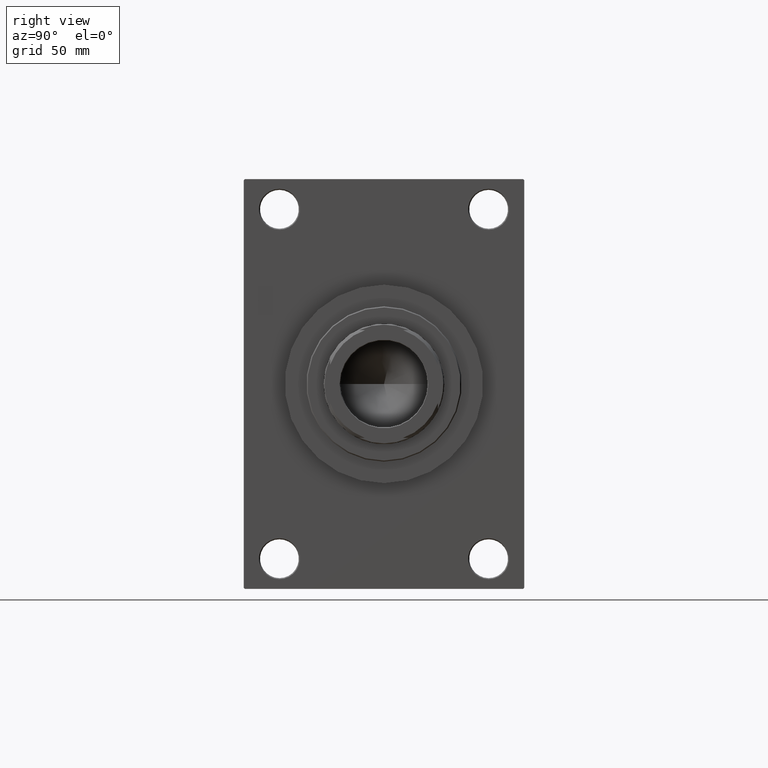
[diagram: clean part render]
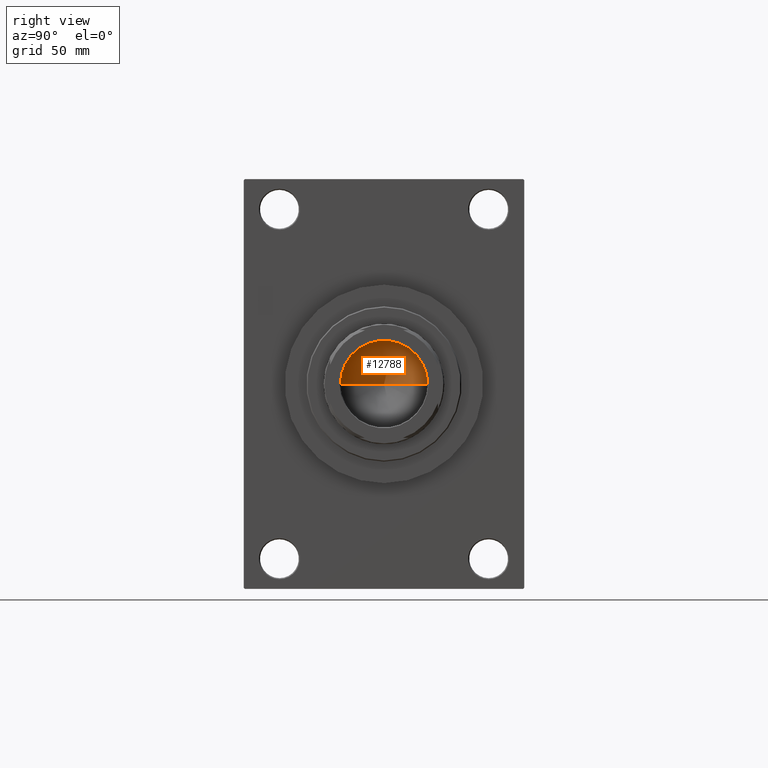
[diagram: same view with one face highlighted and labeled with its STEP entity id]
A machine part, right view. The second image highlights one B-rep face of the part: STEP entity #12788.
In plain terms, the highlighted conical surface has half-angle 59 deg.
Its self-contained STEP definition (entity closure, byte-faithful):
#441 = VERTEX_POINT ( 'NONE', #37894 ) ;
#1770 = CONICAL_SURFACE ( 'NONE', #11801, 20.24999999999998934, 1.029744258676652979 ) ;
#2993 = FACE_OUTER_BOUND ( 'NONE', #7471, .T. ) ;
#6740 = VERTEX_POINT ( 'NONE', #24950 ) ;
#7374 = CARTESIAN_POINT ( 'NONE',  ( -20.24999999999998934, 2.479909768273389117E-15, 123.0000000000000000 ) ) ;
#7471 = EDGE_LOOP ( 'NONE', ( #14398, #10733, #7939 ) ) ;
#7939 = ORIENTED_EDGE ( 'NONE', *, *, #29754, .T. ) ;
#8818 = CARTESIAN_POINT ( 'NONE',  ( 0.000000000000000000, 0.000000000000000000, 123.0000000000000000 ) ) ;
#10733 = ORIENTED_EDGE ( 'NONE', *, *, #44804, .T. ) ;
#11801 = AXIS2_PLACEMENT_3D ( 'NONE', #47179, #25455, #21116 ) ;
#12788 = ADVANCED_FACE ( 'NONE', ( #2993 ), #1770, .F. ) ;
#12900 = VERTEX_POINT ( 'NONE', #45709 ) ;
#14398 = ORIENTED_EDGE ( 'NONE', *, *, #17938, .F. ) ;
#14552 = CIRCLE ( 'NONE', #26890, 20.24999999999998934 ) ;
#14605 = LINE ( 'NONE', #7374, #41870 ) ;
#16309 = DIRECTION ( 'NONE',  ( -0.000000000000000000, -0.000000000000000000, 1.000000000000000000 ) ) ;
#17938 = EDGE_CURVE ( 'NONE', #6740, #441, #35625, .T. ) ;
#21116 = DIRECTION ( 'NONE',  ( 1.000000000000000000, 0.000000000000000000, 0.000000000000000000 ) ) ;
#24950 = CARTESIAN_POINT ( 'NONE',  ( -1.584115414415908206E-14, 0.000000000000000000, 110.8325724646918786 ) ) ;
#25455 = DIRECTION ( 'NONE',  ( -0.000000000000000000, -0.000000000000000000, 1.000000000000000000 ) ) ;
#26890 = AXIS2_PLACEMENT_3D ( 'NONE', #8818, #16309, #27648 ) ;
#27648 = DIRECTION ( 'NONE',  ( 1.000000000000000000, 0.000000000000000000, 0.000000000000000000 ) ) ;
#27691 = CARTESIAN_POINT ( 'NONE',  ( 20.24999999999998934, 0.000000000000000000, 123.0000000000000000 ) ) ;
#29754 = EDGE_CURVE ( 'NONE', #12900, #441, #14552, .T. ) ;
#31885 = DIRECTION ( 'NONE',  ( -0.8571673007021115565, 1.049727191138617710E-16, 0.5150380749100554878 ) ) ;
#35160 = DIRECTION ( 'NONE',  ( 0.8571673007021115565, 0.000000000000000000, 0.5150380749100554878 ) ) ;
#35625 = LINE ( 'NONE', #27691, #38955 ) ;
#37894 = CARTESIAN_POINT ( 'NONE',  ( 20.24999999999998934, 0.000000000000000000, 123.0000000000000000 ) ) ;
#38955 = VECTOR ( 'NONE', #35160, 1000.000000000000000 ) ;
#41870 = VECTOR ( 'NONE', #31885, 1000.000000000000000 ) ;
#44804 = EDGE_CURVE ( 'NONE', #6740, #12900, #14605, .T. ) ;
#45709 = CARTESIAN_POINT ( 'NONE',  ( -20.24999999999998934, 2.479909768273389117E-15, 123.0000000000000000 ) ) ;
#47179 = CARTESIAN_POINT ( 'NONE',  ( 0.000000000000000000, 0.000000000000000000, 123.0000000000000000 ) ) ;